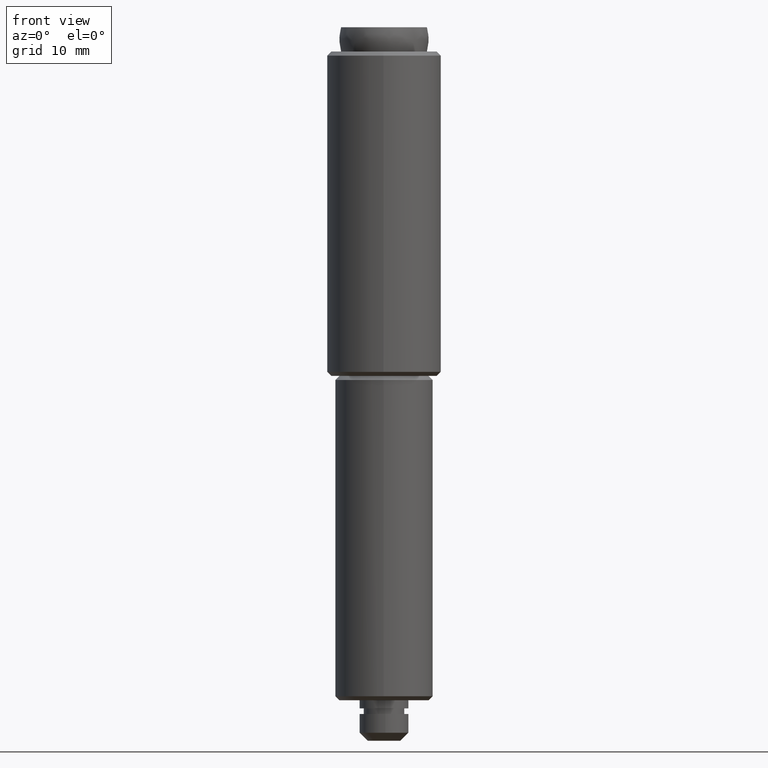
[diagram: clean part render]
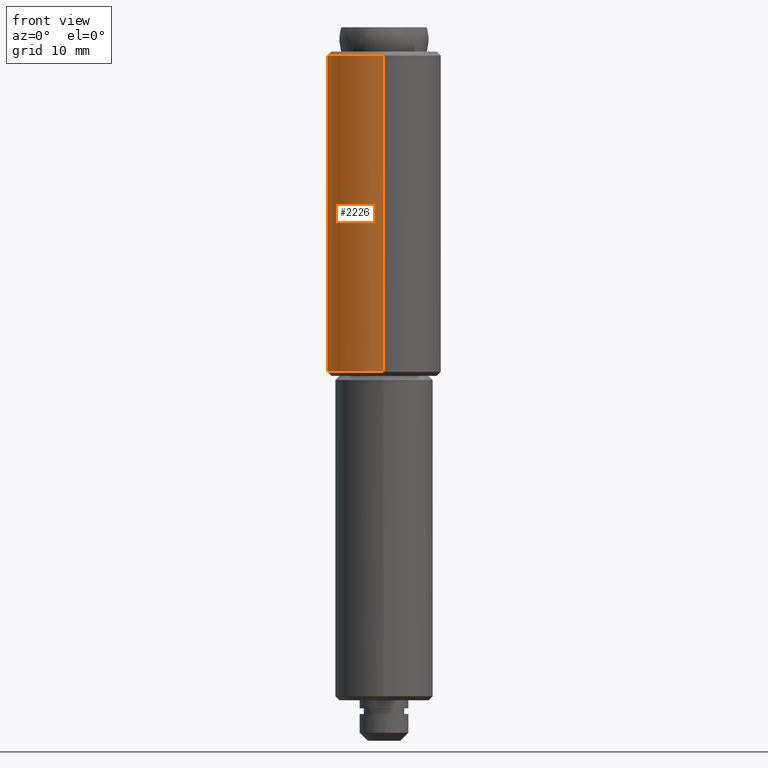
[diagram: same view with one face highlighted and labeled with its STEP entity id]
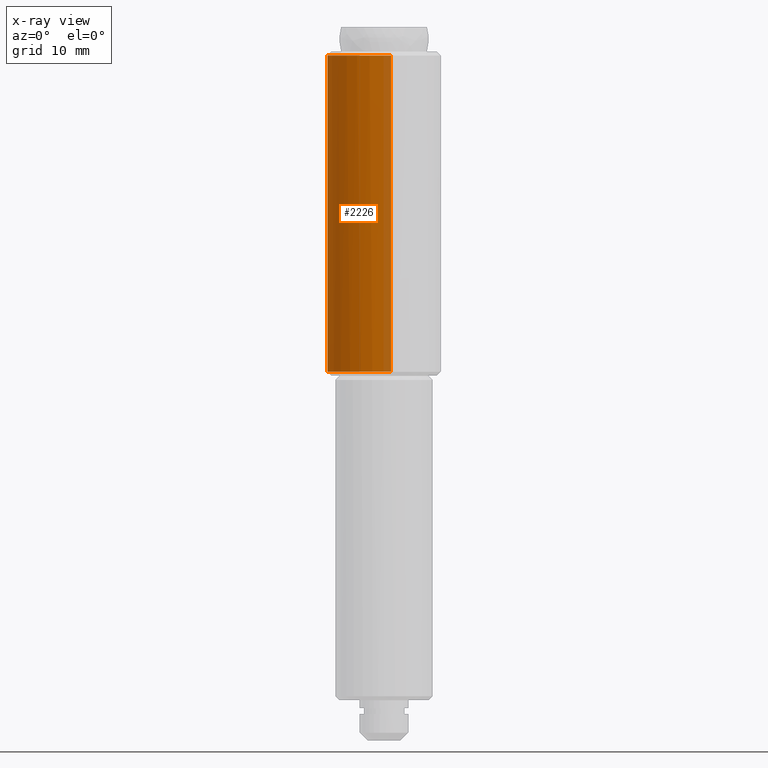
[diagram: x-ray of the same camera — body ghosted, the highlighted face saturated]
A machine part, front view. The second image highlights one B-rep face of the part: STEP entity #2226.
The next image is the same camera in x-ray: the body ghosted, the highlighted face saturated — about 12% of this face is hidden behind the body in this view.
In plain terms, the highlighted face is a freeform B-spline surface patch.
Its self-contained STEP definition (entity closure, byte-faithful):
#1763=CARTESIAN_POINT('',(-2.829508023921066,6.402646667009948,84.499999999999488));
#1764=VERTEX_POINT('',#1763);
#1765=CARTESIAN_POINT('',(0.868896014662353,6.945863496765817,84.500000000000000));
#1766=VERTEX_POINT('',#1765);
#1767=CARTESIAN_POINT('',(-2.829508023921066,6.402646667009948,84.499999999999488));
#1768=CARTESIAN_POINT('',(-1.477809320769725,7.0,84.500000000000000));
#1769=CARTESIAN_POINT('',(0.0,7.0,84.500000000000000));
#1770=CARTESIAN_POINT('',(0.436134492839222,6.999999999999999,84.500000000000000));
#1771=CARTESIAN_POINT('',(0.868896014662353,6.945863496765817,84.500000000000000));
#1779=(BOUNDED_CURVE()B_SPLINE_CURVE(2,(#1767,#1768,#1769,#1770,#1771),.UNSPECIFIED.,.F.,.U.)B_SPLINE_CURVE_WITH_KNOTS((3,2,3),(0.181361578459654,0.250000000000000,0.271473928975730),.UNSPECIFIED.)CURVE()GEOMETRIC_REPRESENTATION_ITEM()RATIONAL_B_SPLINE_CURVE((0.883326595751590,0.919585087123094,1.0,0.974841727286908,0.954005430264961))REPRESENTATION_ITEM(''));
#1780=EDGE_CURVE('',#1764,#1766,#1779,.T.);
#1823=CARTESIAN_POINT('',(-0.061085748544785,-6.999733461448646,84.500000000000057));
#1824=VERTEX_POINT('',#1823);
#1881=CARTESIAN_POINT('',(-7.0,0.0,84.500000000000000));
#1882=VERTEX_POINT('',#1881);
#1883=CARTESIAN_POINT('',(-7.0,0.0,84.500000000000000));
#1884=CARTESIAN_POINT('',(-7.0,4.559590018132457,84.500000000000000));
#1885=CARTESIAN_POINT('',(-2.829508023921066,6.402646667009948,84.499999999999488));
#1893=(BOUNDED_CURVE()B_SPLINE_CURVE(2,(#1883,#1884,#1885),.UNSPECIFIED.,.F.,.U.)B_SPLINE_CURVE_WITH_KNOTS((3,3),(0.0,0.181361578459654),.UNSPECIFIED.)CURVE()GEOMETRIC_REPRESENTATION_ITEM()RATIONAL_B_SPLINE_CURVE((1.0,0.787521694063454,0.883326595751590))REPRESENTATION_ITEM(''));
#1894=EDGE_CURVE('',#1882,#1764,#1893,.T.);
#1896=CARTESIAN_POINT('',(-0.061085748544785,-6.999733461448646,84.500000000000057));
#1897=CARTESIAN_POINT('',(-7.0,-6.939178473942106,84.500000000000014));
#1898=CARTESIAN_POINT('',(-7.0,0.0,84.500000000000000));
#1906=(BOUNDED_CURVE()B_SPLINE_CURVE(2,(#1896,#1897,#1898),.UNSPECIFIED.,.F.,.U.)B_SPLINE_CURVE_WITH_KNOTS((3,3),(0.751539894340641,1.0),.UNSPECIFIED.)CURVE()GEOMETRIC_REPRESENTATION_ITEM()RATIONAL_B_SPLINE_CURVE((0.996414028087321,0.708910879626799,1.0))REPRESENTATION_ITEM(''));
#1907=EDGE_CURVE('',#1824,#1882,#1906,.T.);
#1968=CARTESIAN_POINT('',(-6.819527072219215,1.579256316026569,45.500000000031449));
#1969=VERTEX_POINT('',#1968);
#1970=CARTESIAN_POINT('',(-7.0,0.0,45.500000000000000));
#1971=VERTEX_POINT('',#1970);
#1972=CARTESIAN_POINT('',(-6.819527072219216,1.579256316026569,45.500000000031449));
#1973=CARTESIAN_POINT('',(-7.0,0.799940125034713,45.500000000000007));
#1974=CARTESIAN_POINT('',(-7.0,0.0,45.500000000000000));
#1982=(BOUNDED_CURVE()B_SPLINE_CURVE(2,(#1972,#1973,#1974),.UNSPECIFIED.,.F.,.U.)B_SPLINE_CURVE_WITH_KNOTS((3,3),(0.961422971771876,1.0),.UNSPECIFIED.)CURVE()GEOMETRIC_REPRESENTATION_ITEM()RATIONAL_B_SPLINE_CURVE((0.923556557422156,0.954804200120029,1.0))REPRESENTATION_ITEM(''));
#1983=EDGE_CURVE('',#1969,#1971,#1982,.T.);
#2041=CARTESIAN_POINT('',(-0.061085749070058,6.999733461523375,45.500000000079233));
#2042=VERTEX_POINT('',#2041);
#2048=CARTESIAN_POINT('',(0.868896014624054,6.945863496770608,45.500000000000000));
#2049=VERTEX_POINT('',#2048);
#2050=CARTESIAN_POINT('',(0.868896014624054,6.945863496770608,45.500000000000000));
#2051=CARTESIAN_POINT('',(0.436134492800473,7.0,45.500000000000000));
#2052=CARTESIAN_POINT('',(0.0,7.0,45.500000000000000));
#2053=CARTESIAN_POINT('',(-0.030543456325693,7.0,45.499999999999993));
#2054=CARTESIAN_POINT('',(-0.061085749070058,6.999733461523375,45.500000000079226));
#2062=(BOUNDED_CURVE()B_SPLINE_CURVE(2,(#2050,#2051,#2052,#2053,#2054),.UNSPECIFIED.,.F.,.U.)B_SPLINE_CURVE_WITH_KNOTS((3,2,3),(0.728526071026130,0.750000000000000,0.751539894364215),.UNSPECIFIED.)CURVE()GEOMETRIC_REPRESENTATION_ITEM()RATIONAL_B_SPLINE_CURVE((0.954005430268570,0.974841727289087,1.0,0.998195901532129,0.996414028032764))REPRESENTATION_ITEM(''));
#2063=EDGE_CURVE('',#2049,#2042,#2062,.T.);
#2080=CARTESIAN_POINT('',(-0.061085748588325,-6.999733461448328,45.500000000000000));
#2081=VERTEX_POINT('',#2080);
#2097=CARTESIAN_POINT('',(-7.0,0.0,45.500000000000000));
#2098=CARTESIAN_POINT('',(-6.999999999999999,-6.939178473967143,45.500000000000000));
#2099=CARTESIAN_POINT('',(-0.061085748588325,-6.999733461448328,45.500000000000000));
#2107=(BOUNDED_CURVE()B_SPLINE_CURVE(2,(#2097,#2098,#2099),.UNSPECIFIED.,.F.,.U.)B_SPLINE_CURVE_WITH_KNOTS((3,3),(0.0,0.248460105659995),.UNSPECIFIED.)CURVE()GEOMETRIC_REPRESENTATION_ITEM()RATIONAL_B_SPLINE_CURVE((1.0,0.708910879626055,0.996414028088792))REPRESENTATION_ITEM(''));
#2108=EDGE_CURVE('',#1971,#2081,#2107,.T.);
#2127=CARTESIAN_POINT('',(-0.061085749070058,6.999733461523375,45.500000000079226));
#2128=CARTESIAN_POINT('',(-5.575404929158634,6.951610726088359,45.500000000000014));
#2129=CARTESIAN_POINT('',(-6.819527072219215,1.579256316026568,45.500000000031449));
#2137=(BOUNDED_CURVE()B_SPLINE_CURVE(2,(#2127,#2128,#2129),.UNSPECIFIED.,.F.,.U.)B_SPLINE_CURVE_WITH_KNOTS((3,3),(0.751539894364215,0.961422971771875),.UNSPECIFIED.)CURVE()GEOMETRIC_REPRESENTATION_ITEM()RATIONAL_B_SPLINE_CURVE((0.996414028032764,0.753549905474219,0.923556557422156))REPRESENTATION_ITEM(''));
#2138=EDGE_CURVE('',#2042,#1969,#2137,.T.);
#2178=CARTESIAN_POINT('',(-0.061085748544785,-6.999733461448646,84.500000000000057));
#2179=CARTESIAN_POINT('',(-0.061085748588325,-6.999733461448328,45.500000000000000));
#2180=QUASI_UNIFORM_CURVE('',1,(#2178,#2179),.UNSPECIFIED.,.F.,.U.);
#2181=EDGE_CURVE('',#1824,#2081,#2180,.T.);
#2185=CARTESIAN_POINT('',(0.868896014662353,6.945863496765817,84.500000000000000));
#2186=CARTESIAN_POINT('',(0.868896014624054,6.945863496770608,45.500000000000000));
#2187=QUASI_UNIFORM_CURVE('',1,(#2185,#2186),.UNSPECIFIED.,.F.,.U.);
#2188=EDGE_CURVE('',#1766,#2049,#2187,.T.);
#2193=CARTESIAN_POINT('',(-0.061085748488617,-6.999733461449196,85.475000000000023));
#2194=CARTESIAN_POINT('',(-7.060819209937813,-6.938647712960579,85.475000000000023));
#2195=CARTESIAN_POINT('',(-6.999733461449196,0.061085748488617,85.475000000000023));
#2196=CARTESIAN_POINT('',(-6.938647712960579,7.060819209937813,85.475000000000023));
#2197=CARTESIAN_POINT('',(0.061085748488617,6.999733461449196,85.475000000000023));
#2198=CARTESIAN_POINT('',(0.466551112707215,6.996195018821929,85.475000000000009));
#2199=CARTESIAN_POINT('',(0.868896014558805,6.945863496778769,85.475000000000023));
#2200=CARTESIAN_POINT('',(-0.061085748488617,-6.999733461449196,44.500624999999992));
#2201=CARTESIAN_POINT('',(-7.060819209937813,-6.938647712960579,44.500624999999999));
#2202=CARTESIAN_POINT('',(-6.999733461449196,0.061085748488617,44.500624999999992));
#2203=CARTESIAN_POINT('',(-6.938647712960579,7.060819209937813,44.500624999999999));
#2204=CARTESIAN_POINT('',(0.061085748488617,6.999733461449196,44.500624999999992));
#2205=CARTESIAN_POINT('',(0.466551112707215,6.996195018821929,44.500624999999992));
#2206=CARTESIAN_POINT('',(0.868896014558805,6.945863496778769,44.500624999999992));
#2214=(BOUNDED_SURFACE()B_SPLINE_SURFACE(2,1,((#2193,#2200),(#2194,#2201),(#2195,#2202),(#2196,#2203),(#2197,#2204),(#2198,#2205),(#2199,#2206)),.UNSPECIFIED.,.F.,.F.,.U.)B_SPLINE_SURFACE_WITH_KNOTS((3,2,2,3),(2,2),(0.0,11.597979746446660,23.195959492893319,24.123797872609050),(0.0,40.974375000000030),.UNSPECIFIED.)GEOMETRIC_REPRESENTATION_ITEM()RATIONAL_B_SPLINE_SURFACE(((1.0,1.0),(0.707106781186548,0.707106781186548),(1.0,1.0),(0.707106781186548,0.707106781186548),(1.0,1.0),(0.976568542494924,0.976568542494924),(0.956886118190660,0.956886118190660)))REPRESENTATION_ITEM('')SURFACE());
#2215=ORIENTED_EDGE('',*,*,#1894,.T.);
#2216=ORIENTED_EDGE('',*,*,#1780,.T.);
#2217=ORIENTED_EDGE('',*,*,#2188,.T.);
#2218=ORIENTED_EDGE('',*,*,#2063,.T.);
#2219=ORIENTED_EDGE('',*,*,#2138,.T.);
#2220=ORIENTED_EDGE('',*,*,#1983,.T.);
#2221=ORIENTED_EDGE('',*,*,#2108,.T.);
#2222=ORIENTED_EDGE('',*,*,#2181,.F.);
#2223=ORIENTED_EDGE('',*,*,#1907,.T.);
#2224=EDGE_LOOP('',(#2215,#2216,#2217,#2218,#2219,#2220,#2221,#2222,#2223));
#2225=FACE_OUTER_BOUND('',#2224,.T.);
#2226=ADVANCED_FACE('',(#2225),#2214,.T.);